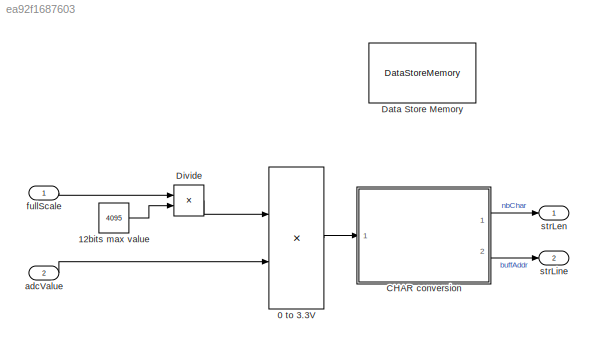
MODEL slx_ea92f1687603
KIND model
CONFIG AbsTol = auto
CONFIG EnableMultiTasking = on
CONFIG FixedStep = 0.010
CONFIG MaxStep = auto
CONFIG MinStep = auto
CONFIG RelTol = 1e-3
CONFIG SampleTimeConstraint = Unconstrained
CONFIG Solver = FixedStepDiscrete
CONFIG SolverName = FixedStepDiscrete
CONFIG StartTime = 0.0
CONFIG StopTime = 10.0
BLOCK [Product] 0 to 3.3V
  InputSameDT = off
  OutDataTypeStr = Inherit: Inherit via internal rule
  Ports = [2, 1]
  SaturateOnIntegerOverflow = off
BLOCK [Constant] 12bits max value
  Value = 4095
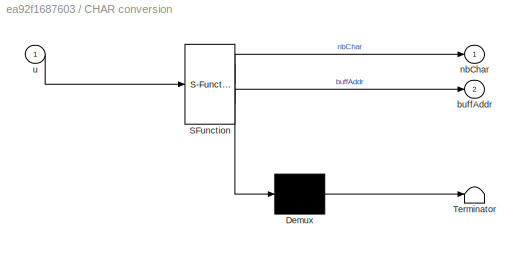
BLOCK [SubSystem] CHAR conversion
  AttributesFormatString = SystemSampleTime=%<SystemSampleTime>
  ErrorFcn = Stateflow.Translate.translate
  PermitHierarchicalResolution = ExplicitOnly
  Ports = [1, 2]
  RequestExecContextInheritance = off
  SFBlockType = MATLAB Function
  SystemSampleTime = 0.200
  TreatAsAtomicUnit = on
BLOCK [Demux] CHAR conversion/ Demux 
  Outputs = 1
  Ports = [1, 1]
BLOCK [S-Function] CHAR conversion/ SFunction 
  EnableBusSupport = on
  FunctionName = sf_sfun
  PortCounts = [1 3]
  Ports = [1, 3]
  SFcnIsStateOwnerBlock = off
  SFunctionDeploymentMode = off
  Tag = Stateflow S-Function G431_ADC_Converter 2
BLOCK [Terminator] CHAR conversion/ Terminator 
BLOCK [Outport] CHAR conversion/buffAddr
  IconDisplay = Port number
  Port = 2
BLOCK [Outport] CHAR conversion/nbChar
  IconDisplay = Port number
BLOCK [Inport] CHAR conversion/u
  IconDisplay = Port number
BLOCK [DataStoreMemory] Data Store Memory
  DataStoreName = converterBuff
  InitialValue = [0,0,0,0,0,0,0,0,0,0,0,0,0,0,0,0,0,0,0,0,0,0,0,0,0,0,0]
  OutDataTypeStr = uint8
  ReadBeforeWriteMsg = warning
  ShowAdditionalParam = off
  SignalType = real
  WriteAfterReadMsg = warning
  WriteAfterWriteMsg = warning
BLOCK [Product] Divide
  InputSameDT = off
  Inputs = */
  OutDataTypeStr = Inherit: Inherit via internal rule
  Ports = [2, 1]
  RndMeth = Floor
  SaturateOnIntegerOverflow = off
BLOCK [Inport] adcValue
  IconDisplay = Port number
  OutDataTypeStr = double
  Port = 2
  PortDimensions = 1
  SampleTime = [0.20000000000000001,0]
  SamplingMode = Sample based
  SignalType = real
BLOCK [Inport] fullScale
  IconDisplay = Port number
  OutDataTypeStr = double
  PortDimensions = 1
  SamplingMode = Sample based
  SignalType = real
BLOCK [Outport] strLen
  IconDisplay = Port number
  OutDataTypeStr = uint16
  PortDimensions = 1
  SampleTime = [0.20000000000000001,0]
  SamplingMode = Sample based
  SignalType = real
BLOCK [Outport] strLine
  IconDisplay = Port number
  OutDataTypeStr = uint32
  Port = 2
  PortDimensions = 1
  SampleTime = [0.20000000000000001,0]
  SamplingMode = Sample based
  SignalType = real
LINE 0 to 3.3V:1 -> CHAR conversion:1
LINE 12bits max value:1 -> Divide:2
LINE CHAR conversion:1 -> strLen:1
LINE CHAR conversion:2 -> strLine:1
LINE Divide:1 -> 0 to 3.3V:1
LINE adcValue:1 -> 0 to 3.3V:2
LINE fullScale:1 -> Divide:1
CHART CHAR conversion states=1 transitions=1
  STATE_LABEL 'eML_blk_kernel()'
  STATE_LABEL "SCRIPT:\nfunction [nbChar, buffAddr] = convert(u) %#codegen\nglobal converterBuff;\n\nif coder.target('Sfun')\n    % Executing in MATLAB, Buff is null\n    buffAddr = uint32(0);\n    nbChar = uint16(0);\nelse\n    coder.cinclude('stdio.h');\n    coder.cinclude('main.h');\n    coder.cinclude('getBuffPtr.h');\n    % Executing in the generated code.\n    %%%converterBuff = char(zeros(1,20));\n    %%%stringSize = u...<+373ch>"
